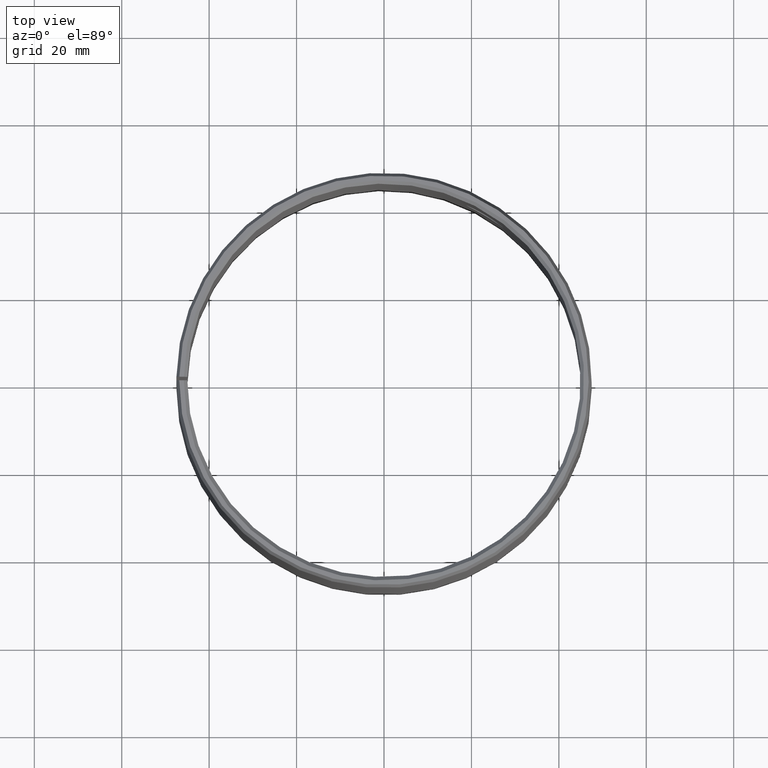
[diagram: clean part render]
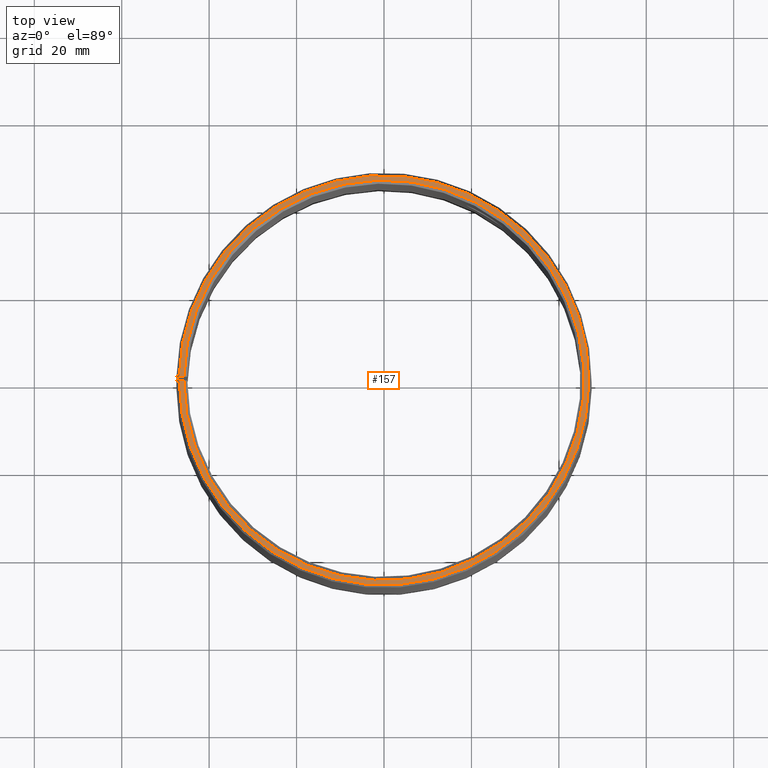
[diagram: same view with one face highlighted and labeled with its STEP entity id]
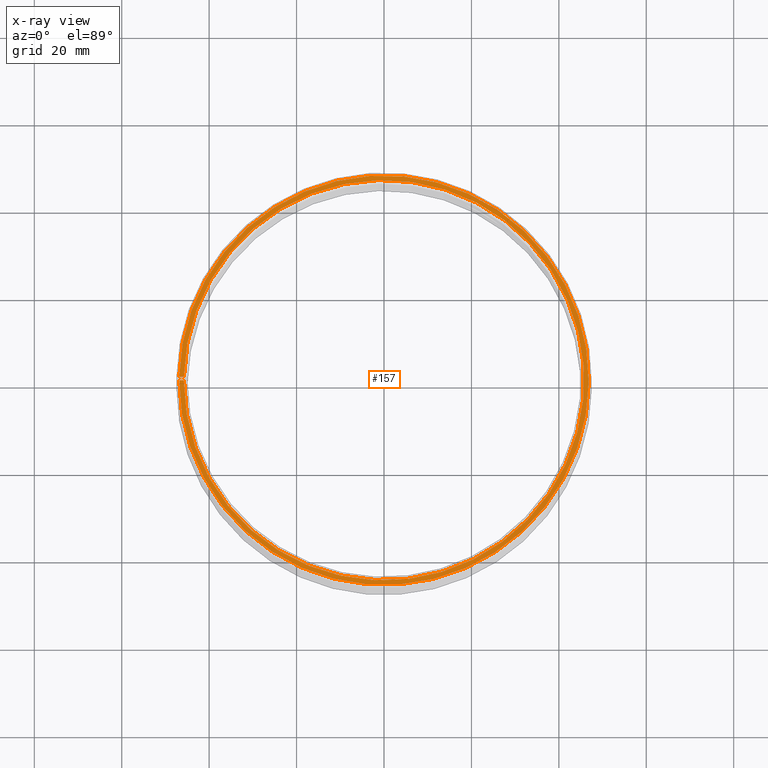
[diagram: x-ray of the same camera — body ghosted, the highlighted face saturated]
A machine part, top view. The second image highlights one B-rep face of the part: STEP entity #157.
The next image is the same camera in x-ray: the body ghosted, the highlighted face saturated — about 0% of this face is hidden behind the body in this view.
In plain terms, the highlighted planar face has unit normal (0, -0, 1).
Its self-contained STEP definition (entity closure, byte-faithful):
#157=ADVANCED_FACE('',(#174),#175,.T.);
#174=FACE_OUTER_BOUND('',#200,.T.);
#175=PLANE('',#201);
#200=EDGE_LOOP('',(#245,#246,#247,#248));
#201=AXIS2_PLACEMENT_3D('',#249,#250,#251);
#245=ORIENTED_EDGE('',*,*,#316,.T.);
#246=ORIENTED_EDGE('',*,*,#317,.T.);
#247=ORIENTED_EDGE('',*,*,#318,.F.);
#248=ORIENTED_EDGE('',*,*,#312,.F.);
#249=CARTESIAN_POINT('',(0.000817555424143879,0.0468377188802227,0.1));
#250=DIRECTION('',(-6.12323399573677E-017,0.0,1.0));
#251=DIRECTION('',(1.0,0.0,6.12323399573677E-017));
#312=EDGE_CURVE('',#346,#347,#348,.T.);
#316=EDGE_CURVE('',#346,#354,#355,.T.);
#317=EDGE_CURVE('',#354,#356,#357,.T.);
#318=EDGE_CURVE('',#347,#356,#358,.T.);
#346=VERTEX_POINT('',#396);
#347=VERTEX_POINT('',#397);
#348=CIRCLE('',#398,0.0468448535783208);
#354=VERTEX_POINT('',#406);
#355=LINE('',#407,#408);
#356=VERTEX_POINT('',#409);
#357=CIRCLE('',#410,0.0458);
#358=LINE('',#411,#412);
#396=CARTESIAN_POINT('',(0.000817555424143879,0.0468377188802227,0.1));
#397=CARTESIAN_POINT('',(-1.38777878078145E-017,0.0468448535783208,0.1));
#398=AXIS2_PLACEMENT_3D('',#600,#601,#602);
#406=CARTESIAN_POINT('',(0.000799320214827573,0.0457930244381627,0.1));
#407=CARTESIAN_POINT('',(0.000817555424143879,0.0468377188802227,0.1));
#408=VECTOR('',#608,1.0);
#409=CARTESIAN_POINT('',(-1.38777878078145E-017,0.0458,0.1));
#410=AXIS2_PLACEMENT_3D('',#609,#610,#611);
#411=CARTESIAN_POINT('',(-1.38777878078145E-017,0.0468448535783208,0.1));
#412=VECTOR('',#612,1.0);
#600=CARTESIAN_POINT('',(-1.38777878078145E-017,-6.93889390390723E-018,0.1));
#601=DIRECTION('',(6.12323399573677E-017,0.0,-1.0));
#602=DIRECTION('',(-1.0,0.0,-6.12323399573677E-017));
#608=DIRECTION('',(-0.0174524064372836,-0.999847695156391,-1.0686516840419E-018));
#609=CARTESIAN_POINT('',(-1.38777878078145E-017,-6.93889390390723E-018,0.1));
#610=DIRECTION('',(6.12323399573677E-017,0.0,-1.0));
#611=DIRECTION('',(-1.0,0.0,-6.12323399573677E-017));
#612=DIRECTION('',(0.0,-1.0,0.0));